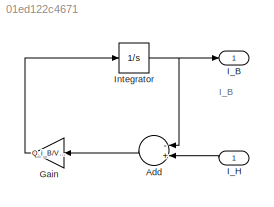
MODEL slx_01ed122c4671
KIND model
CONFIG AbsTol = auto
CONFIG EnableMultiTasking = off
CONFIG FixedStep = auto
CONFIG MaxStep = auto
CONFIG MinStep = auto
CONFIG RelTol = 1e-3
CONFIG SampleTimeConstraint = Unconstrained
CONFIG Solver = VariableStepAuto
CONFIG SolverName = VariableStepAuto
CONFIG StartTime = 0.0
CONFIG StopTime = 10.0
BLOCK [Sum] Add
  InputSameDT = off
  Inputs = -+
  OutDataTypeStr = Inherit: Inherit via internal rule
  Ports = [2, 1]
  SaturateOnIntegerOverflow = off
BLOCK [Gain] Gain
  Gain = Q_i_B/V_i_B
  OutDataTypeStr = Inherit: Inherit via internal rule
  ParamDataTypeStr = Inherit: Inherit via internal rule
  SaturateOnIntegerOverflow = off
BLOCK [Outport] I_B 
  IconDisplay = Port number
BLOCK [Inport] I_H
  IconDisplay = Port number
BLOCK [Integrator] Integrator
  InitialCondition = IBC_B
  LimitOutput = on
  LowerSaturationLimit = 0
  Ports = [1, 1]
ANNOTATION (root): I_B
LINE Add:1 -> Gain:1
LINE Gain:1 -> Integrator:1
LINE I_H:1 -> Add:2
NET Integrator:1 -> Add:1, I_B :1
note: NET lines group one-source signal fan-out (src -> all destinations, sorted); 1:1 wires keep LINE
